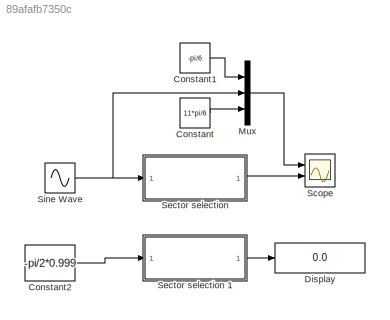
MODEL slx_89afafb7350c
KIND model
CONFIG AbsTol = auto
CONFIG FixedStep = Ts
CONFIG MaxStep = auto
CONFIG MinStep = auto
CONFIG RelTol = 1e-3
CONFIG SampleTimeConstraint = Unconstrained
CONFIG Solver = ode3
CONFIG SolverMode = Auto
CONFIG SolverName = ode3
CONFIG StartTime = 0.0
CONFIG StopTime = 0.5
BLOCK [Constant] Constant
  Value = 11*pi/6
BLOCK [Constant] Constant1
  Value = -pi/6
BLOCK [Constant] Constant2
  Value = -pi/2*0.999
BLOCK [Display] Display
  Decimation = 1
  Ports = [1]
BLOCK [Mux] Mux
  DisplayOption = bar
  Inputs = 3
  Ports = [3, 1]
BLOCK [Scope] Scope
  Floating = off
  LimitDataPoints = off
  NumInputPorts = 2
  Ports = [2]
  YMax = 5~12
  YMin = -2~0
  ZoomMode = xonly
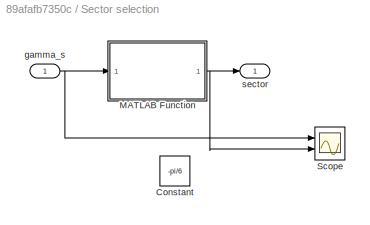
BLOCK [SubSystem] Sector selection 
  Ports = [1, 1]
  RequestExecContextInheritance = off
BLOCK [Constant] Sector selection /Constant
  Value = -pi/6
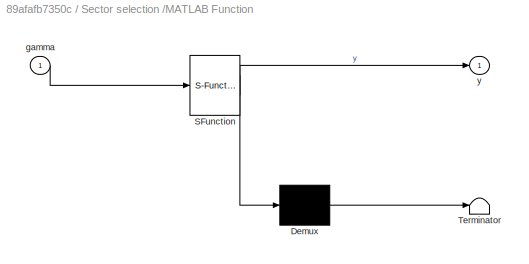
BLOCK [SubSystem] Sector selection /MATLAB Function
  ErrorFcn = Stateflow.Translate.translate
  PermitHierarchicalResolution = ExplicitOnly
  Ports = [1, 1]
  RequestExecContextInheritance = off
  SFBlockType = MATLAB Function
  TreatAsAtomicUnit = on
BLOCK [Demux] Sector selection /MATLAB Function/ Demux 
  Outputs = 1
  Ports = [1, 1]
BLOCK [S-Function] Sector selection /MATLAB Function/ SFunction 
  EnableBusSupport = on
  FunctionName = sf_sfun
  PortCounts = [1 2]
  Ports = [1, 2]
  Tag = Stateflow S-Function sector_selection 2
BLOCK [Terminator] Sector selection /MATLAB Function/ Terminator 
BLOCK [Inport] Sector selection /MATLAB Function/gamma
  IconDisplay = Port number
BLOCK [Outport] Sector selection /MATLAB Function/y
  IconDisplay = Port number
BLOCK [Scope] Sector selection /Scope
  Floating = off
  LegendLocations = 0.92535     0.93361    0.054687    0.021203\n0.90399     0.45812    0.076042    0.021203
  LimitDataPoints = off
  NumInputPorts = 2
  Ports = [2]
  SaveName = ScopeData10
  ShowLegends = on
  YMax = 5~12
  YMin = -2~10
  ZoomMode = xonly
BLOCK [Inport] Sector selection /gamma_s
  IconDisplay = Port number
BLOCK [Outport] Sector selection /sector 
  IconDisplay = Port number
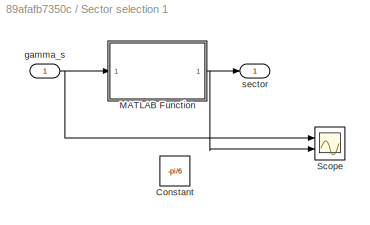
BLOCK [SubSystem] Sector selection 1
  Ports = [1, 1]
  RequestExecContextInheritance = off
BLOCK [Constant] Sector selection 1/Constant
  Value = -pi/6
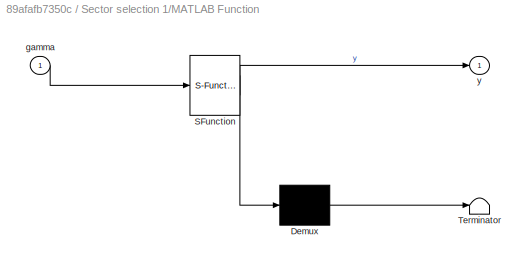
BLOCK [SubSystem] Sector selection 1/MATLAB Function
  ErrorFcn = Stateflow.Translate.translate
  PermitHierarchicalResolution = ExplicitOnly
  Ports = [1, 1]
  RequestExecContextInheritance = off
  SFBlockType = MATLAB Function
  TreatAsAtomicUnit = on
BLOCK [Demux] Sector selection 1/MATLAB Function/ Demux 
  Outputs = 1
  Ports = [1, 1]
BLOCK [S-Function] Sector selection 1/MATLAB Function/ SFunction 
  EnableBusSupport = on
  FunctionName = sf_sfun
  PortCounts = [1 2]
  Ports = [1, 2]
  Tag = Stateflow S-Function sector_selection 1
BLOCK [Terminator] Sector selection 1/MATLAB Function/ Terminator 
BLOCK [Inport] Sector selection 1/MATLAB Function/gamma
  IconDisplay = Port number
BLOCK [Outport] Sector selection 1/MATLAB Function/y
  IconDisplay = Port number
BLOCK [Scope] Sector selection 1/Scope
  Floating = off
  LegendLocations = 0.92535     0.93361    0.054687    0.021203\n0.90399     0.45812    0.076042    0.021203
  LimitDataPoints = off
  NumInputPorts = 2
  Ports = [2]
  SaveName = ScopeData10
  ShowLegends = on
  YMax = 5~12
  YMin = -2~10
  ZoomMode = xonly
BLOCK [Inport] Sector selection 1/gamma_s
  IconDisplay = Port number
BLOCK [Outport] Sector selection 1/sector 
  IconDisplay = Port number
BLOCK [Sin] Sine Wave
  Amplitude = pi*0.999
  Bias = 5*pi/6
  Frequency = 2*pi*50
  Ports = [0, 1]
  SampleTime = 0
LINE Constant1:1 -> Mux:1
LINE Constant2:1 -> Sector selection 1:1
LINE Constant:1 -> Mux:3
LINE Mux:1 -> Scope:1
NET Sector selection /MATLAB Function:1 -> Sector selection /Scope:2, Sector selection /sector :1
NET Sector selection /gamma_s:1 -> Sector selection /MATLAB Function:1, Sector selection /Scope:1
NET Sector selection 1/MATLAB Function:1 -> Sector selection 1/Scope:2, Sector selection 1/sector :1
NET Sector selection 1/gamma_s:1 -> Sector selection 1/MATLAB Function:1, Sector selection 1/Scope:1
LINE Sector selection 1:1 -> Display:1
LINE Sector selection :1 -> Scope:2
NET Sine Wave:1 -> Mux:2, Sector selection :1
note: NET lines group one-source signal fan-out (src -> all destinations, sorted); 1:1 wires keep LINE
CHART Sector selection 1/MATLAB Function states=1 transitions=1
  STATE_LABEL 'eML_blk_kernel()'
  STATE_LABEL 'SCRIPT:\nfunction y = fcn(gamma)\n%#codegen\n\n% persistent n ; \n% n = 1 ; \n% \n% % gamma\n% up = (n-1)*pi/6  ; \n% down = (n-2)*pi/6 ;  \n% % n \n% \n% \n% if (n>=11 && gamma <0 ) \n%     gamma = gamma + 2*pi ; \n% end \n% while (down >=gamma || gamma > up) \n%     if n==12 \n%         n=1 ; \n%     else \n%         n=n+1  \n%     end\n%    if (n>=11 && gamma <0 ) \n%     gamma = gamma + 2*pi ; \n%    end \n%     up = ...<+336ch>'
CHART Sector selection /MATLAB Function states=1 transitions=1
  STATE_LABEL 'eML_blk_kernel()'
  STATE_LABEL 'SCRIPT:\nfunction y = fcn(gamma)\n%#codegen\n\n% persistent n ; \n% n = 1 ; \n% \n% % gamma\n% up = (n-1)*pi/6  ; \n% down = (n-2)*pi/6 ;  \n% % n \n% \n% \n% if (n>=11 && gamma <0 ) \n%     gamma = gamma + 2*pi ; \n% end \n% while (down >=gamma || gamma > up) \n%     if n==12 \n%         n=1 ; \n%     else \n%         n=n+1  \n%     end\n%    if (n>=11 && gamma <0 ) \n%     gamma = gamma + 2*pi ; \n%    end \n%     up = ...<+337ch>'
